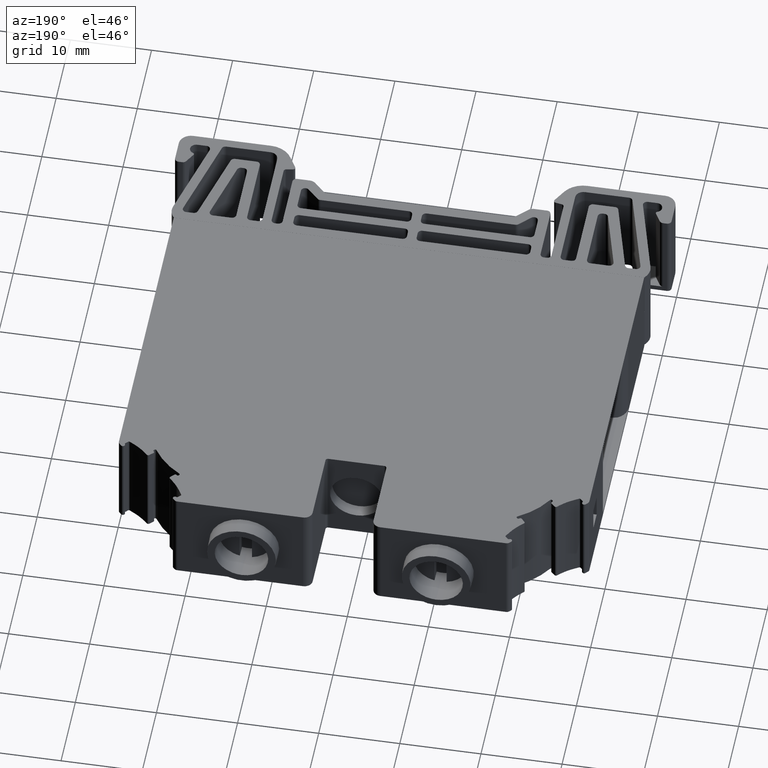
[diagram: clean part render]
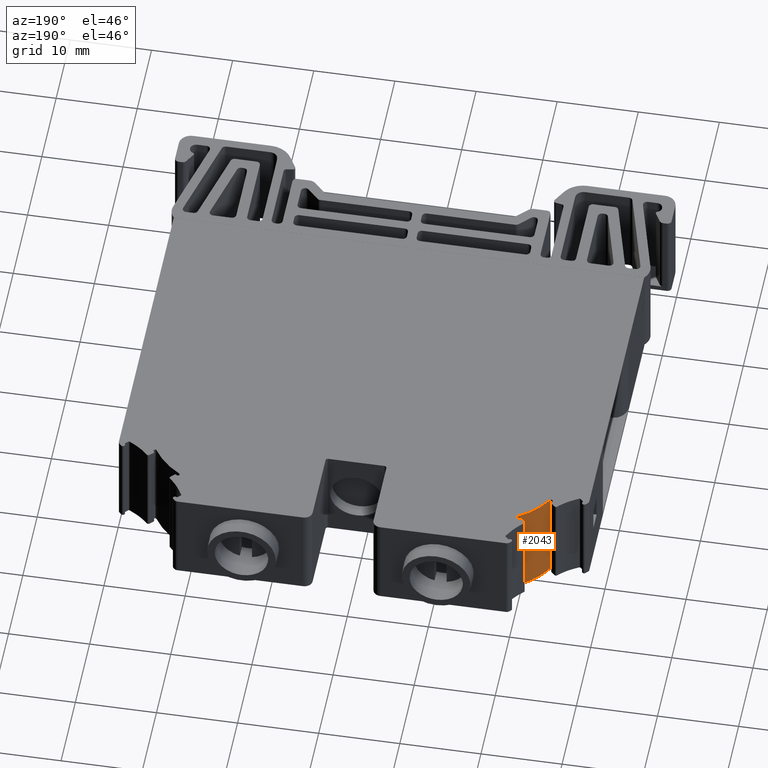
[diagram: same view with one face highlighted and labeled with its STEP entity id]
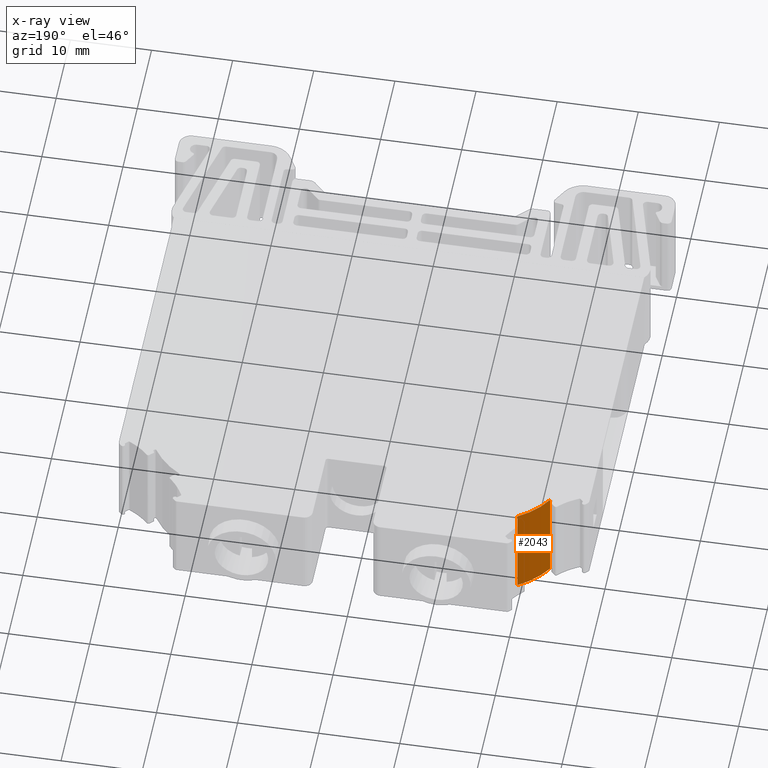
[diagram: x-ray of the same camera — body ghosted, the highlighted face saturated]
A machine part, auxiliary view. The second image highlights one B-rep face of the part: STEP entity #2043.
The next image is the same camera in x-ray: the body ghosted, the highlighted face saturated — about 0% of this face is hidden behind the body in this view.
In plain terms, the highlighted cylindrical surface (partial cylindrical patch) has radius 10 mm, axis along (-0, 0, 1).
Its self-contained STEP definition (entity closure, byte-faithful):
#1751 = EDGE_CURVE ( 'NONE', #3667, #3605, #6599, .T. ) ;
#1766 = EDGE_CURVE ( 'NONE', #3579, #3591, #6691, .T. ) ;
#1785 = EDGE_CURVE ( 'NONE', #3591, #3667, #4778, .T. ) ;
#1802 = EDGE_CURVE ( 'NONE', #3579, #3605, #4827, .T. ) ;
#2043 = ADVANCED_FACE ( 'NONE', ( #7972 ), #7987, .T. ) ;
#3413 = EDGE_LOOP ( 'NONE', ( #14080, #14101, #14042, #14021 ) ) ;
#3579 = VERTEX_POINT ( 'NONE', #11741 ) ;
#3591 = VERTEX_POINT ( 'NONE', #11758 ) ;
#3605 = VERTEX_POINT ( 'NONE', #11801 ) ;
#3667 = VERTEX_POINT ( 'NONE', #11877 ) ;
#4665 = VECTOR ( 'NONE', #6646, 1000.000000000000000 ) ;
#4680 = AXIS2_PLACEMENT_3D ( 'NONE', #6736, #6726, #6761 ) ;
#4764 = VECTOR ( 'NONE', #6683, 1000.000000000000000 ) ;
#4778 = CIRCLE ( 'NONE', #4680, 9.999999565563966200 ) ;
#4827 = CIRCLE ( 'NONE', #4877, 9.999999565563966200 ) ;
#4877 = AXIS2_PLACEMENT_3D ( 'NONE', #6764, #6807, #6769 ) ;
#5078 = AXIS2_PLACEMENT_3D ( 'NONE', #7983, #7973, #7954 ) ;
#6599 = LINE ( 'NONE', #6607, #4665 ) ;
#6607 = CARTESIAN_POINT ( 'NONE',  ( 1730.351278126758000, 812.4648107407333600, 5.999999999999298300 ) ) ;
#6646 = DIRECTION ( 'NONE',  ( 1.396592535537252100E-014, -0.0000000000000000000, -1.000000000000000000 ) ) ;
#6683 = DIRECTION ( 'NONE',  ( -1.396592535537252100E-014, 0.0000000000000000000, 1.000000000000000000 ) ) ;
#6691 = LINE ( 'NONE', #6705, #4764 ) ;
#6705 = CARTESIAN_POINT ( 'NONE',  ( 1726.929517622750800, 809.0430998242345600, 5.999999999999250400 ) ) ;
#6726 = DIRECTION ( 'NONE',  ( 1.396592535537252100E-014, -0.0000000000000000000, -1.000000000000000000 ) ) ;
#6736 = CARTESIAN_POINT ( 'NONE',  ( 1735.501319435365100, 803.8929342932499400, 11.99999999997525900 ) ) ;
#6761 = DIRECTION ( 'NONE',  ( 1.000000000000000000, -4.440892291428989800E-014, 1.405126076584953700E-014 ) ) ;
#6764 = CARTESIAN_POINT ( 'NONE',  ( 1735.501319435365100, 803.8929342932499400, 7.199102425303749400E-014 ) ) ;
#6769 = DIRECTION ( 'NONE',  ( 1.000000000000000000, -4.440892291428989800E-014, 1.396592535537252200E-014 ) ) ;
#6807 = DIRECTION ( 'NONE',  ( 1.396592535537252100E-014, -0.0000000000000000000, -1.000000000000000000 ) ) ;
#7954 = DIRECTION ( 'NONE',  ( 1.000000000000000000, 0.0000000000000000000, 1.396452458828256500E-014 ) ) ;
#7972 = FACE_OUTER_BOUND ( 'NONE', #3413, .T. ) ;
#7973 = DIRECTION ( 'NONE',  ( -1.396592535537252100E-014, 0.0000000000000000000, 1.000000000000000000 ) ) ;
#7983 = CARTESIAN_POINT ( 'NONE',  ( 1735.501319435365100, 803.8929342932499400, 5.999999999999370300 ) ) ;
#7987 = CYLINDRICAL_SURFACE ( 'NONE', #5078, 9.999999565563966200 ) ;
#11741 = CARTESIAN_POINT ( 'NONE',  ( 1726.929517622750400, 809.0430998242347900, -2.246595080705666800E-014 ) ) ;
#11758 = CARTESIAN_POINT ( 'NONE',  ( 1726.929517622750400, 809.0430998242347900, 11.99999999997514000 ) ) ;
#11801 = CARTESIAN_POINT ( 'NONE',  ( 1730.351278126421700, 812.4648107405309900, 1.046816121083329400E-016 ) ) ;
#11877 = CARTESIAN_POINT ( 'NONE',  ( 1730.351278126421700, 812.4648107405309900, 11.99999999997516300 ) ) ;
#14021 = ORIENTED_EDGE ( 'NONE', *, *, #1785, .T. ) ;
#14042 = ORIENTED_EDGE ( 'NONE', *, *, #1766, .T. ) ;
#14080 = ORIENTED_EDGE ( 'NONE', *, *, #1751, .T. ) ;
#14101 = ORIENTED_EDGE ( 'NONE', *, *, #1802, .F. ) ;